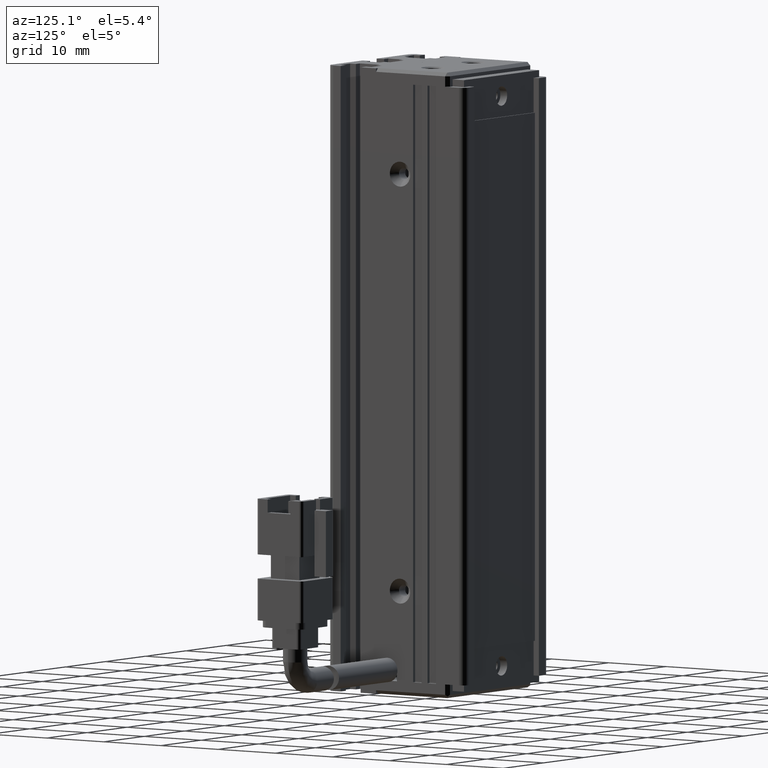
[diagram: clean part render]
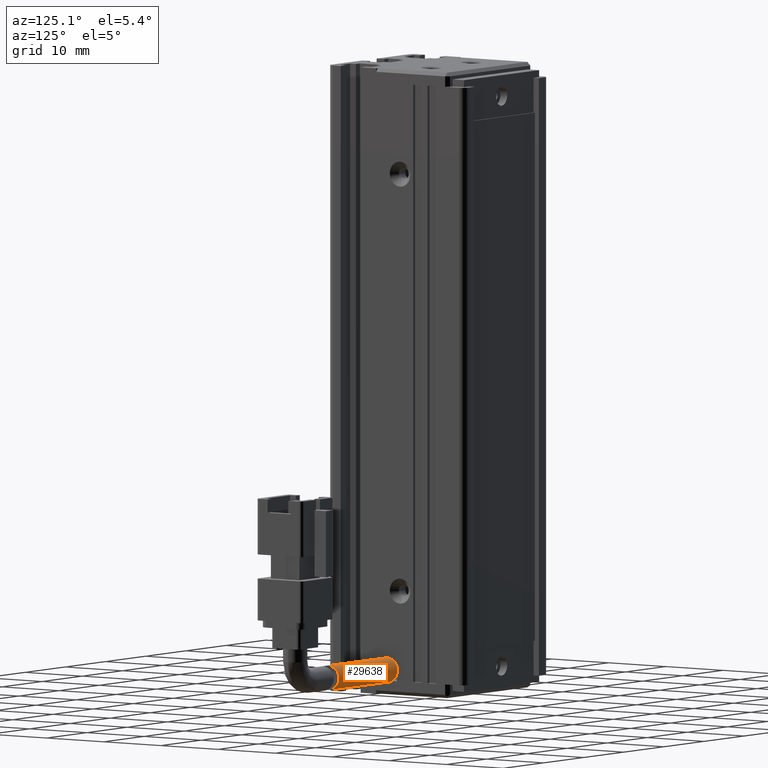
[diagram: same view with one face highlighted and labeled with its STEP entity id]
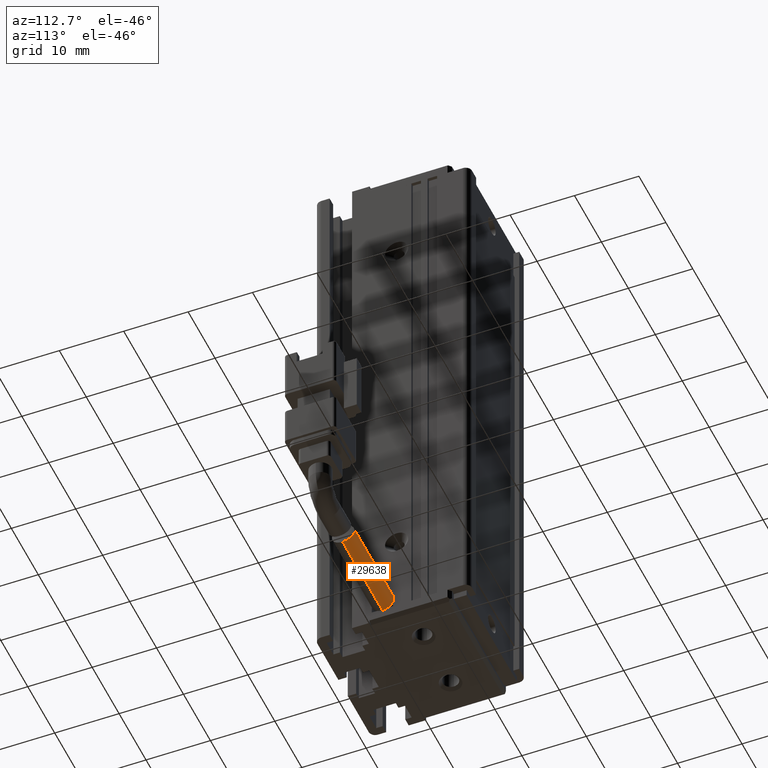
[diagram: same view with one face highlighted and labeled with its STEP entity id]
A machine part, auxiliary view. The second image highlights one B-rep face of the part: STEP entity #29638.
A second angle (auxiliary view) of the same face is appended — the face is thin or edge-on in the first view.
In plain terms, the highlighted cylindrical surface (edge-blend (fillet) strip) has radius 1.75 mm, axis along (-1, -0, -0).
Its self-contained STEP definition (entity closure, byte-faithful):
#605 = ORIENTED_EDGE ( 'NONE', *, *, #25926, .F. ) ;
#1446 = CARTESIAN_POINT ( 'NONE',  ( 66.15272929082432500, 21.94491196028725400, -154.7561066842592900 ) ) ;
#1880 = CARTESIAN_POINT ( 'NONE',  ( 66.16064130294120100, 22.37141064514801100, -157.9665380968413900 ) ) ;
#2408 = ORIENTED_EDGE ( 'NONE', *, *, #21286, .T. ) ;
#3220 = ORIENTED_EDGE ( 'NONE', *, *, #10282, .T. ) ;
#3263 = ORIENTED_EDGE ( 'NONE', *, *, #9060, .T. ) ;
#3359 = CARTESIAN_POINT ( 'NONE',  ( 51.42537974683536100, 21.49073232304853000, -158.1999999999999900 ) ) ;
#3888 = CARTESIAN_POINT ( 'NONE',  ( 66.20621967933263400, 21.72282869244823200, -158.1999999999999300 ) ) ;
#4298 = CARTESIAN_POINT ( 'NONE',  ( 65.99693793915955100, 23.01894157653051900, -155.5672986979645900 ) ) ;
#4409 = CARTESIAN_POINT ( 'NONE',  ( 66.17113496622531000, 22.26883414955935000, -158.0216747521504000 ) ) ;
#6662 = CARTESIAN_POINT ( 'NONE',  ( 71.42537974683536100, 21.49073232304857200, -154.6999999999999900 ) ) ;
#6780 = CARTESIAN_POINT ( 'NONE',  ( 66.06343873949747100, 22.64709544356476900, -155.1315777397996700 ) ) ;
#6884 = CARTESIAN_POINT ( 'NONE',  ( 66.12463420223005500, 22.64847476324763400, -157.7673024940898200 ) ) ;
#6966 = VERTEX_POINT ( 'NONE', #20744 ) ;
#8163 = CARTESIAN_POINT ( 'NONE',  ( 71.42537974683536100, 21.49073232304857200, -158.1999999999999900 ) ) ;
#9060 = EDGE_CURVE ( 'NONE', #6966, #29877, #27529, .T. ) ;
#9090 = CARTESIAN_POINT ( 'NONE',  ( 66.16909918599567700, 21.49073232304855500, -154.6999999999999900 ) ) ;
#9267 = CARTESIAN_POINT ( 'NONE',  ( 66.13743220877901800, 22.56061969415858600, -157.8395406144934200 ) ) ;
#9378 = CARTESIAN_POINT ( 'NONE',  ( 66.12003836585688500, 22.26761315901732600, -154.8777216974355600 ) ) ;
#10282 = EDGE_CURVE ( 'NONE', #17424, #6966, #20920, .T. ) ;
#11229 = VECTOR ( 'NONE', #18138, 1000.000000000000000 ) ;
#11324 = CARTESIAN_POINT ( 'NONE',  ( 66.16909918599567700, 21.49073232304855500, -154.6999999999999900 ) ) ;
#11426 = CARTESIAN_POINT ( 'NONE',  ( 66.14312513808747000, 22.05618387698944400, -154.7899194494976600 ) ) ;
#11742 = CARTESIAN_POINT ( 'NONE',  ( 66.07835221810199800, 22.55760743916209400, -155.0581316121932800 ) ) ;
#11802 = VECTOR ( 'NONE', #14319, 1000.000000000000000 ) ;
#13878 = DIRECTION ( 'NONE',  ( 0.0000000000000000000, 0.0000000000000000000, 1.000000000000000000 ) ) ;
#14103 = DIRECTION ( 'NONE',  ( 0.0000000000000000000, 0.0000000000000000000, 1.000000000000000000 ) ) ;
#14219 = CARTESIAN_POINT ( 'NONE',  ( 65.97024437261940500, 23.19420936625597600, -155.9887505292055300 ) ) ;
#14319 = DIRECTION ( 'NONE',  ( -1.000000000000000000, -3.304235192336770000E-015, -8.579261317967046800E-031 ) ) ;
#16017 = EDGE_LOOP ( 'NONE', ( #3220, #3263, #2408, #605 ) ) ;
#16318 = CARTESIAN_POINT ( 'NONE',  ( 66.16564187166542900, 21.72081579437508100, -154.7114329739075900 ) ) ;
#16523 = CARTESIAN_POINT ( 'NONE',  ( 66.16909918599564800, 21.60680859003607400, -154.7000000000000200 ) ) ;
#16737 = CARTESIAN_POINT ( 'NONE',  ( 66.01781632386861500, 23.15157741340434700, -157.0132809039903300 ) ) ;
#16761 = CIRCLE ( 'NONE', #32291, 1.750000000000001600 ) ;
#17424 = VERTEX_POINT ( 'NONE', #9090 ) ;
#18138 = DIRECTION ( 'NONE',  ( -1.000000000000000000, -3.304235192336770000E-015, -8.579261317967046800E-031 ) ) ;
#18216 = CARTESIAN_POINT ( 'NONE',  ( 51.42537974683536100, 21.49073232304850800, -154.6999999999999900 ) ) ;
#18919 = CYLINDRICAL_SURFACE ( 'NONE', #30091, 1.750000000000001600 ) ;
#19263 = CARTESIAN_POINT ( 'NONE',  ( 65.98134991565424900, 23.24078982580401500, -156.5637194744110700 ) ) ;
#20683 = VERTEX_POINT ( 'NONE', #18216 ) ;
#20744 = CARTESIAN_POINT ( 'NONE',  ( 66.20621967933266200, 21.49073232304855800, -158.2000000000000200 ) ) ;
#20815 = CARTESIAN_POINT ( 'NONE',  ( 66.19668055208003900, 21.95177912622205300, -158.1536289975071000 ) ) ;
#20920 = B_SPLINE_CURVE_WITH_KNOTS ( 'NONE', 3,
 ( #11324, #16523, #16318, #1446, #11426, #9378, #24199, #11742, #6780, #29130, #4298, #14219, #21615, #19263, #21716, #31665, #16737, #26603, #24099, #6884, #9267, #1880, #4409, #20815, #3888, #31161 ),
 .UNSPECIFIED., .F., .F.,
 ( 4, 2, 2, 2, 2, 2, 2, 2, 2, 2, 2, 2, 4 ),
 ( 0.005490571999675115800, 0.005833718808239246300, 0.006176865616803375900, 0.006520012425367506400, 0.006863159233931636800, 0.007549452851059833600, 0.008235746468188030400, 0.008578893276752087200, 0.008922040085316143900, 0.009608333702444255700, 0.009951480511008340200, 0.01029462731957242500, 0.01098092093670055000 ),
 .UNSPECIFIED. ) ;
#21286 = EDGE_CURVE ( 'NONE', #29877, #20683, #16761, .T. ) ;
#21615 = CARTESIAN_POINT ( 'NONE',  ( 65.96799919059763800, 23.24061665153338700, -156.2199166147517000 ) ) ;
#21716 = CARTESIAN_POINT ( 'NONE',  ( 65.98855349268924900, 23.22932324687321100, -156.6799364845564400 ) ) ;
#22300 = LINE ( 'NONE', #6662, #11802 ) ;
#23678 = DIRECTION ( 'NONE',  ( 1.000000000000000000, 3.304235192336770000E-015, 8.579261317967046800E-031 ) ) ;
#24099 = CARTESIAN_POINT ( 'NONE',  ( 66.08400798320373300, 22.89150646391432900, -157.5237529889948300 ) ) ;
#24199 = CARTESIAN_POINT ( 'NONE',  ( 66.10664507071450700, 22.36783389789095000, -154.9313779437375700 ) ) ;
#25837 = FACE_OUTER_BOUND ( 'NONE', #16017, .T. ) ;
#25926 = EDGE_CURVE ( 'NONE', #17424, #20683, #22300, .T. ) ;
#26603 = CARTESIAN_POINT ( 'NONE',  ( 66.05492445293644700, 23.01977546981313000, -157.3316429091015000 ) ) ;
#27529 = LINE ( 'NONE', #8163, #11229 ) ;
#28799 = DIRECTION ( 'NONE',  ( -1.000000000000000000, -3.304235192336770000E-015, -8.579261317967046800E-031 ) ) ;
#28918 = CARTESIAN_POINT ( 'NONE',  ( 51.42537974683536100, 21.49073232304850800, -156.4499999999999900 ) ) ;
#29130 = CARTESIAN_POINT ( 'NONE',  ( 66.02159805663031000, 22.88828370669178400, -155.3725020553220600 ) ) ;
#29638 = ADVANCED_FACE ( 'NONE', ( #25837 ), #18919, .T. ) ;
#29877 = VERTEX_POINT ( 'NONE', #3359 ) ;
#30091 = AXIS2_PLACEMENT_3D ( 'NONE', #31536, #28799, #13878 ) ;
#31161 = CARTESIAN_POINT ( 'NONE',  ( 66.20621967933266200, 21.49073232304855800, -158.2000000000000200 ) ) ;
#31536 = CARTESIAN_POINT ( 'NONE',  ( 71.42537974683536100, 21.49073232304857200, -156.4499999999999900 ) ) ;
#31665 = CARTESIAN_POINT ( 'NONE',  ( 66.00678294115664400, 23.18463344848183600, -156.9041675512314400 ) ) ;
#32291 = AXIS2_PLACEMENT_3D ( 'NONE', #28918, #23678, #14103 ) ;